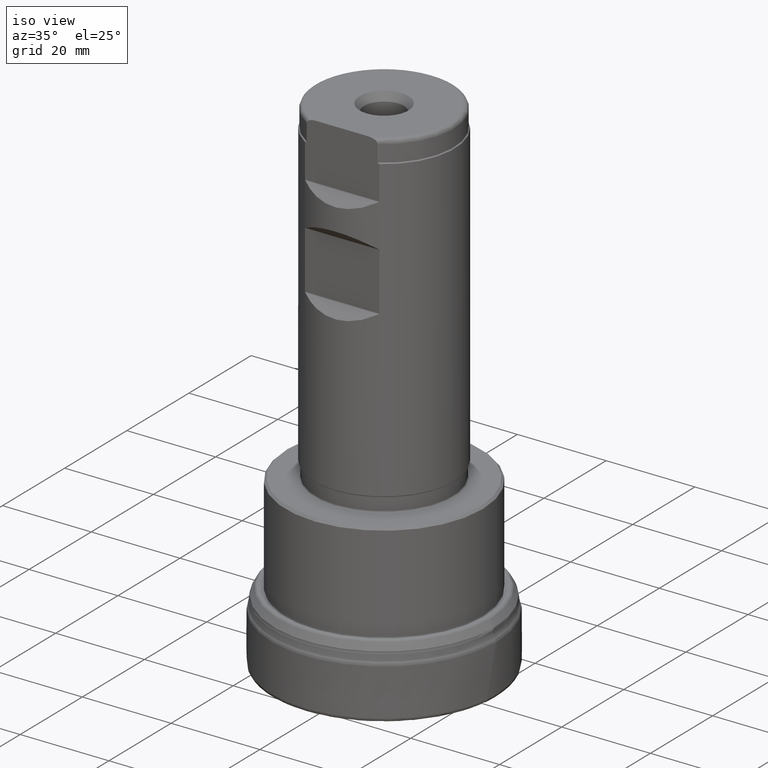
[diagram: clean part render]
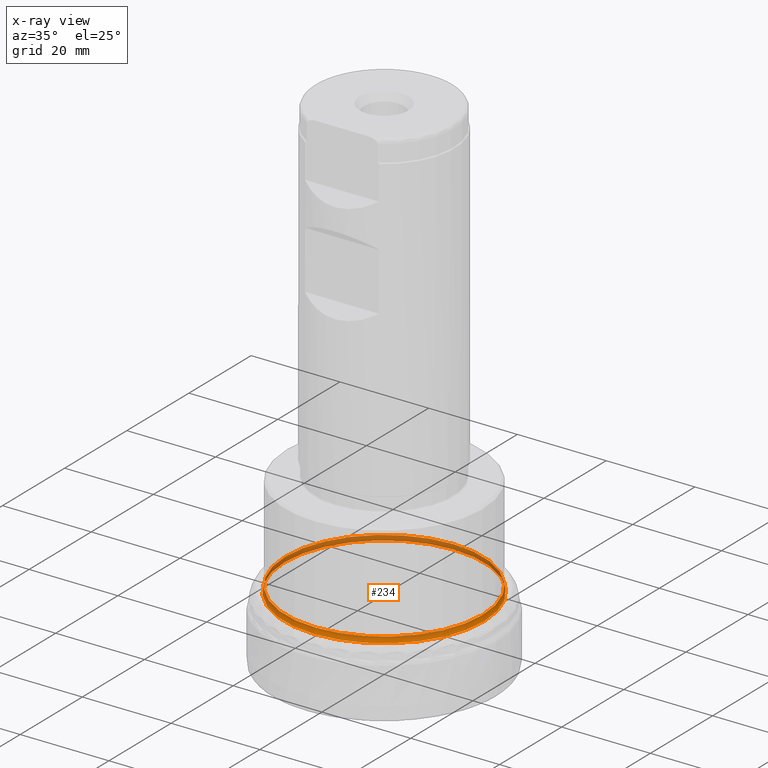
[diagram: x-ray — body ghosted, one internal face saturated and labeled with its STEP entity id]
A machine part, iso view, then the same camera in x-ray: the body is ghosted and one INTERNAL B-rep face — a face not visible from any outside direction — is saturated and labeled: STEP entity #234.
In plain terms, the highlighted toroidal blend (fillet) surface has major radius 25.225 mm and minor (blend) radius 3 mm.
Its self-contained STEP definition (entity closure, byte-faithful):
#162=TOROIDAL_SURFACE('',#996,25.225,3.);
#234=ADVANCED_FACE('',(#364,#365),#162,.F.);
#294=CIRCLE('',#965,22.50607663889);
#296=CIRCLE('',#968,22.225);
#364=FACE_BOUND('',#476,.T.);
#365=FACE_BOUND('',#477,.T.);
#476=EDGE_LOOP('',(#669));
#477=EDGE_LOOP('',(#670));
#669=ORIENTED_EDGE('',*,*,#843,.F.);
#670=ORIENTED_EDGE('',*,*,#841,.F.);
#766=VERTEX_POINT('',#1716);
#768=VERTEX_POINT('',#1721);
#841=EDGE_CURVE('',#766,#766,#294,.T.);
#843=EDGE_CURVE('',#768,#768,#296,.T.);
#965=AXIS2_PLACEMENT_3D('',#1715,#1102,#1103);
#968=AXIS2_PLACEMENT_3D('',#1720,#1108,#1109);
#996=AXIS2_PLACEMENT_3D('',#1765,#1170,#1171);
#1102=DIRECTION('',(0.,-1.17145536458252E-15,-1.));
#1103=DIRECTION('',(0.,1.,-1.15617006718482E-15));
#1108=DIRECTION('',(0.,1.17145536458252E-15,1.));
#1109=DIRECTION('',(0.,1.,-1.24884479710366E-15));
#1170=DIRECTION('',(0.,-1.17145536458252E-15,-1.));
#1171=DIRECTION('',(0.,1.,-1.22921061185248E-15));
#1715=CARTESIAN_POINT('',(0.,1.73039317868581E-14,14.7713112338896));
#1716=CARTESIAN_POINT('',(0.,22.5060766388901,14.7713112338896));
#1720=CARTESIAN_POINT('',(0.,1.87891670765182E-14,16.0391660191117));
#1721=CARTESIAN_POINT('',(0.,22.225,16.0391660191117));
#1765=CARTESIAN_POINT('',(0.,1.87891670765182E-14,16.0391660191117));